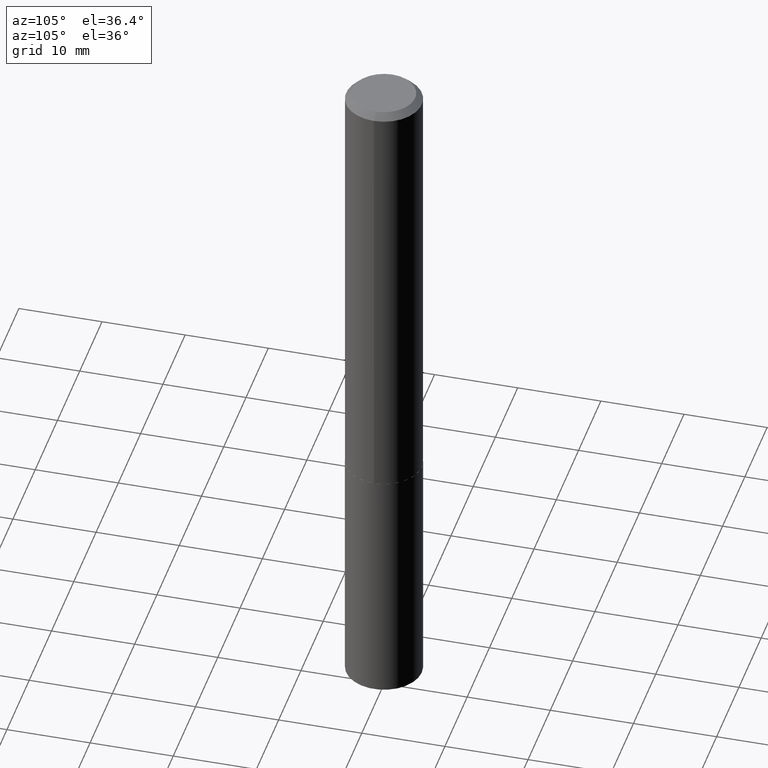
[diagram: clean part render]
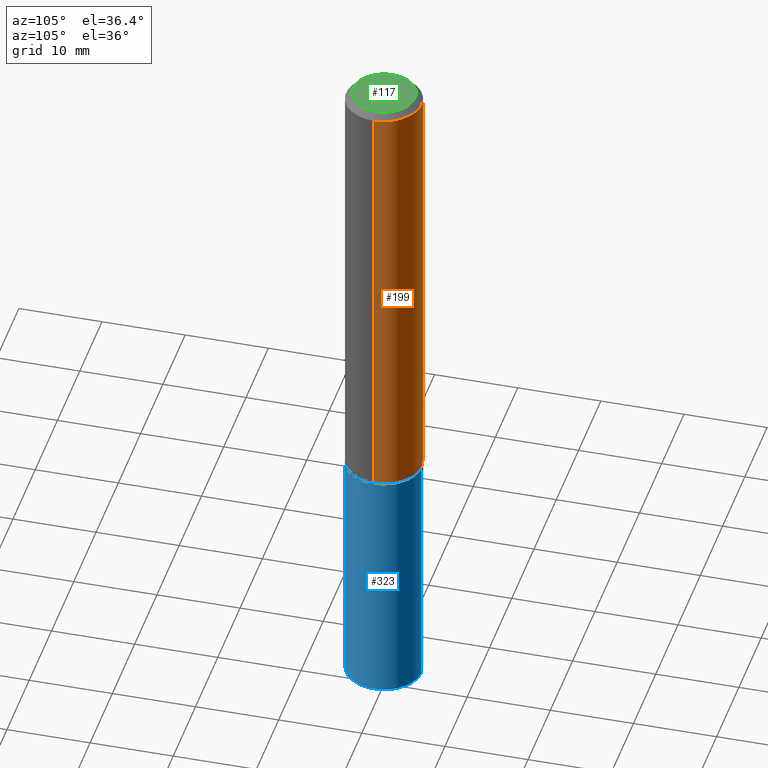
[diagram: same view with three faces highlighted in distinct colors, each labeled with its STEP entity id]
A machine part, auxiliary view with three faces highlighted in distinct colors.
Their STEP definitions:

[orange] entity #199 — the highlighted cylindrical surface (partial cylindrical patch) has radius 4.5504 mm, axis along (-0, 0, 1).
#11 = CARTESIAN_POINT ( 'NONE',  ( -0.1791500000000000314, -2.430389657963233420E-15, -0.03125000000000018735 ) ) ;
#15 = LINE ( 'NONE', #129, #303 ) ;
#26 = CIRCLE ( 'NONE', #61, 0.1791500000000002535 ) ;
#30 = DIRECTION ( 'NONE',  ( -2.445468806185136597E-29, 3.491481338843145583E-15, 1.000000000000000000 ) ) ;
#39 = CARTESIAN_POINT ( 'NONE',  ( 0.1791500000000002535, -8.548542910023556308E-15, -2.090100000000000513 ) ) ;
#40 = VERTEX_POINT ( 'NONE', #98 ) ;
#46 = DIRECTION ( 'NONE',  ( 1.000000000000000000, -6.982962677686267499E-15, 4.876176775795936353E-29 ) ) ;
#47 = CARTESIAN_POINT ( 'NONE',  ( -0.1791500000000001147, 1.272937311114220298E-15, -8.812272214191669091E-30 ) ) ;
#48 = VECTOR ( 'NONE', #108, 39.37007874015748143 ) ;
#49 = LINE ( 'NONE', #47, #48 ) ;
#53 = VERTEX_POINT ( 'NONE', #39 ) ;
#61 = AXIS2_PLACEMENT_3D ( 'NONE', #182, #30, #302 ) ;
#73 = ORIENTED_EDGE ( 'NONE', *, *, #314, .F. ) ;
#98 = CARTESIAN_POINT ( 'NONE',  ( 0.1791500000000000314, -1.360106555546343720E-15, -0.03125000000000018735 ) ) ;
#108 = DIRECTION ( 'NONE',  ( -2.445468806185136877E-29, 3.491481338843145188E-15, 1.000000000000000000 ) ) ;
#109 = CARTESIAN_POINT ( 'NONE',  ( 0.000000000000000000, 0.000000000000000000, 0.000000000000000000 ) ) ;
#111 = EDGE_CURVE ( 'NONE', #53, #260, #26, .T. ) ;
#127 = ORIENTED_EDGE ( 'NONE', *, *, #111, .T. ) ;
#129 = CARTESIAN_POINT ( 'NONE',  ( 0.1791500000000001147, -1.250997763707495606E-15, 8.735670693838425178E-30 ) ) ;
#131 = DIRECTION ( 'NONE',  ( -2.445468806185136877E-29, 3.491481338843145188E-15, 1.000000000000000000 ) ) ;
#132 = VERTEX_POINT ( 'NONE', #11 ) ;
#138 = CARTESIAN_POINT ( 'NONE',  ( 7.642090019328597407E-31, -1.091087918388489527E-16, -0.03125000000000018735 ) ) ;
#182 = CARTESIAN_POINT ( 'NONE',  ( 5.111274351807554765E-29, -7.297545146316060308E-15, -2.090100000000000513 ) ) ;
#184 = CIRCLE ( 'NONE', #317, 0.1791500000000000314 ) ;
#193 = EDGE_CURVE ( 'NONE', #260, #132, #49, .T. ) ;
#199 = ADVANCED_FACE ( 'NONE', ( #373 ), #272, .T. ) ;
#243 = DIRECTION ( 'NONE',  ( -2.445468806185136597E-29, 3.491481338843145583E-15, 1.000000000000000000 ) ) ;
#244 = AXIS2_PLACEMENT_3D ( 'NONE', #109, #367, #46 ) ;
#260 = VERTEX_POINT ( 'NONE', #281 ) ;
#272 = CYLINDRICAL_SURFACE ( 'NONE', #244, 0.1791500000000001147 ) ;
#281 = CARTESIAN_POINT ( 'NONE',  ( -0.1791500000000002535, -6.024607835201839024E-15, -2.090100000000000513 ) ) ;
#302 = DIRECTION ( 'NONE',  ( 1.000000000000000000, -6.982962677686262766E-15, 0.000000000000000000 ) ) ;
#303 = VECTOR ( 'NONE', #131, 39.37007874015748143 ) ;
#314 = EDGE_CURVE ( 'NONE', #53, #40, #15, .T. ) ;
#317 = AXIS2_PLACEMENT_3D ( 'NONE', #138, #243, #375 ) ;
#319 = EDGE_CURVE ( 'NONE', #40, #132, #184, .T. ) ;
#330 = ORIENTED_EDGE ( 'NONE', *, *, #193, .T. ) ;
#339 = EDGE_LOOP ( 'NONE', ( #127, #330, #362, #73 ) ) ;
#362 = ORIENTED_EDGE ( 'NONE', *, *, #319, .F. ) ;
#367 = DIRECTION ( 'NONE',  ( -2.445468806185136597E-29, 3.491481338843145583E-15, 1.000000000000000000 ) ) ;
#373 = FACE_OUTER_BOUND ( 'NONE', #339, .T. ) ;
#375 = DIRECTION ( 'NONE',  ( 1.000000000000000000, -6.982962677686267499E-15, 0.000000000000000000 ) ) ;

[blue] entity #323 — the highlighted cylindrical surface (partial cylindrical patch) has radius 4.5504 mm, axis along (-0, 0, 1).
#34 = EDGE_CURVE ( 'NONE', #326, #181, #72, .T. ) ;
#37 = ORIENTED_EDGE ( 'NONE', *, *, #234, .F. ) ;
#55 = CARTESIAN_POINT ( 'NONE',  ( -1.250997763707443541E-15, -0.1791500000000073312, -2.090599999999999792 ) ) ;
#58 = DIRECTION ( 'NONE',  ( -6.982962677686265133E-15, -1.000000000000000000, 3.049788438363675772E-15 ) ) ;
#60 = CARTESIAN_POINT ( 'NONE',  ( 5.112497086210647566E-29, -7.299290886985481023E-15, -2.090600000000000236 ) ) ;
#72 = LINE ( 'NONE', #94, #388 ) ;
#94 = CARTESIAN_POINT ( 'NONE',  ( 1.272937311114270588E-15, 0.1791499999999927040, -2.090600000000001124 ) ) ;
#105 = AXIS2_PLACEMENT_3D ( 'NONE', #60, #192, #58 ) ;
#106 = AXIS2_PLACEMENT_3D ( 'NONE', #114, #164, #252 ) ;
#110 = FACE_OUTER_BOUND ( 'NONE', #345, .T. ) ;
#114 = CARTESIAN_POINT ( 'NONE',  ( 5.112497086210647566E-29, -7.299290886985481023E-15, -2.090600000000000236 ) ) ;
#123 = DIRECTION ( 'NONE',  ( -2.445528270393014272E-29, 3.491396182712971728E-15, 1.000000000000000000 ) ) ;
#164 = DIRECTION ( 'NONE',  ( -2.445528270393014272E-29, 3.491396182712972122E-15, 1.000000000000000000 ) ) ;
#166 = CIRCLE ( 'NONE', #106, 0.1791500000000000314 ) ;
#167 = VERTEX_POINT ( 'NONE', #187 ) ;
#180 = ORIENTED_EDGE ( 'NONE', *, *, #356, .T. ) ;
#181 = VERTEX_POINT ( 'NONE', #309 ) ;
#187 = CARTESIAN_POINT ( 'NONE',  ( -1.250997763707415339E-15, -0.1791500000000114667, -3.259096902175965038 ) ) ;
#192 = DIRECTION ( 'NONE',  ( -2.445528270393014272E-29, 3.491396182712972122E-15, 1.000000000000000000 ) ) ;
#194 = DIRECTION ( 'NONE',  ( -6.982962677686265133E-15, -1.000000000000000000, 3.049788438363675772E-15 ) ) ;
#217 = CARTESIAN_POINT ( 'NONE',  ( -1.250997763707443541E-15, -0.1791500000000073312, -2.090599999999999792 ) ) ;
#234 = EDGE_CURVE ( 'NONE', #167, #389, #278, .T. ) ;
#252 = DIRECTION ( 'NONE',  ( -6.982962677686265133E-15, -1.000000000000000000, 3.049788438363675772E-15 ) ) ;
#257 = ORIENTED_EDGE ( 'NONE', *, *, #385, .F. ) ;
#262 = VECTOR ( 'NONE', #306, 39.37007874015748143 ) ;
#278 = LINE ( 'NONE', #217, #262 ) ;
#298 = CIRCLE ( 'NONE', #390, 0.1791500000000000314 ) ;
#301 = ORIENTED_EDGE ( 'NONE', *, *, #34, .T. ) ;
#306 = DIRECTION ( 'NONE',  ( -2.445528270393014272E-29, 3.491396182712971728E-15, 1.000000000000000000 ) ) ;
#309 = CARTESIAN_POINT ( 'NONE',  ( 1.272937311114299184E-15, 0.1791499999999927040, -2.090600000000001124 ) ) ;
#316 = CARTESIAN_POINT ( 'NONE',  ( 1.272937311114299381E-15, 0.1791499999999886794, -3.259096902175965926 ) ) ;
#323 = ADVANCED_FACE ( 'NONE', ( #110 ), #334, .T. ) ;
#326 = VERTEX_POINT ( 'NONE', #316 ) ;
#334 = CYLINDRICAL_SURFACE ( 'NONE', #105, 0.1791500000000000314 ) ;
#345 = EDGE_LOOP ( 'NONE', ( #180, #301, #257, #37 ) ) ;
#353 = CARTESIAN_POINT ( 'NONE',  ( 7.970089294348630770E-29, -1.137897651075457780E-14, -3.259096902175965482 ) ) ;
#356 = EDGE_CURVE ( 'NONE', #167, #326, #298, .T. ) ;
#378 = DIRECTION ( 'NONE',  ( -2.445528270393014272E-29, 3.491396182712972122E-15, 1.000000000000000000 ) ) ;
#385 = EDGE_CURVE ( 'NONE', #389, #181, #166, .T. ) ;
#388 = VECTOR ( 'NONE', #123, 39.37007874015748143 ) ;
#389 = VERTEX_POINT ( 'NONE', #55 ) ;
#390 = AXIS2_PLACEMENT_3D ( 'NONE', #353, #378, #194 ) ;

[green] entity #117 — the highlighted planar face has unit normal (0, -0, -1).
#7 = DIRECTION ( 'NONE',  ( 1.000000000000000000, -6.982962677686267499E-15, 4.876180342865737915E-29 ) ) ;
#42 = FACE_OUTER_BOUND ( 'NONE', #174, .T. ) ;
#52 = VERTEX_POINT ( 'NONE', #300 ) ;
#71 = ORIENTED_EDGE ( 'NONE', *, *, #79, .T. ) ;
#79 = EDGE_CURVE ( 'NONE', #52, #271, #195, .T. ) ;
#112 = AXIS2_PLACEMENT_3D ( 'NONE', #307, #313, #315 ) ;
#116 = CARTESIAN_POINT ( 'NONE',  ( -2.994835545909350361E-48, 4.275831445897007673E-34, 1.224646799147363014E-19 ) ) ;
#117 = ADVANCED_FACE ( 'NONE', ( #42 ), #381, .F. ) ;
#146 = DIRECTION ( 'NONE',  ( -1.000000000000000000, 6.982962677686265922E-15, -4.876176775795935793E-29 ) ) ;
#152 = CARTESIAN_POINT ( 'NONE',  ( -5.989671091818700721E-48, 8.551662891794015345E-34, 2.449293598294726028E-19 ) ) ;
#172 = EDGE_CURVE ( 'NONE', #271, #52, #358, .T. ) ;
#174 = EDGE_LOOP ( 'NONE', ( #210, #71 ) ) ;
#189 = CARTESIAN_POINT ( 'NONE',  ( -0.1479000000000000037, 1.087334575949222546E-15, 2.449293598220593614E-19 ) ) ;
#195 = CIRCLE ( 'NONE', #343, 0.1479000000000000037 ) ;
#210 = ORIENTED_EDGE ( 'NONE', *, *, #172, .T. ) ;
#224 = DIRECTION ( 'NONE',  ( 2.438088387897960049E-29, -3.491481338843145188E-15, -1.000000000000000000 ) ) ;
#269 = DIRECTION ( 'NONE',  ( -2.445468806185136597E-29, 3.491481338843145583E-15, 1.000000000000000000 ) ) ;
#271 = VERTEX_POINT ( 'NONE', #189 ) ;
#284 = AXIS2_PLACEMENT_3D ( 'NONE', #116, #224, #146 ) ;
#300 = CARTESIAN_POINT ( 'NONE',  ( 0.1479000000000000037, -1.176417331005014297E-15, 2.449293598371968819E-19 ) ) ;
#307 = CARTESIAN_POINT ( 'NONE',  ( -5.989671091818700721E-48, 8.551662891794015345E-34, 2.449293598294726028E-19 ) ) ;
#313 = DIRECTION ( 'NONE',  ( -2.445468806185136597E-29, 3.491481338843145583E-15, 1.000000000000000000 ) ) ;
#315 = DIRECTION ( 'NONE',  ( 1.000000000000000000, -6.982962677686267499E-15, 4.876180342865737915E-29 ) ) ;
#343 = AXIS2_PLACEMENT_3D ( 'NONE', #152, #269, #7 ) ;
#358 = CIRCLE ( 'NONE', #112, 0.1479000000000000037 ) ;
#381 = PLANE ( 'NONE',  #284 ) ;